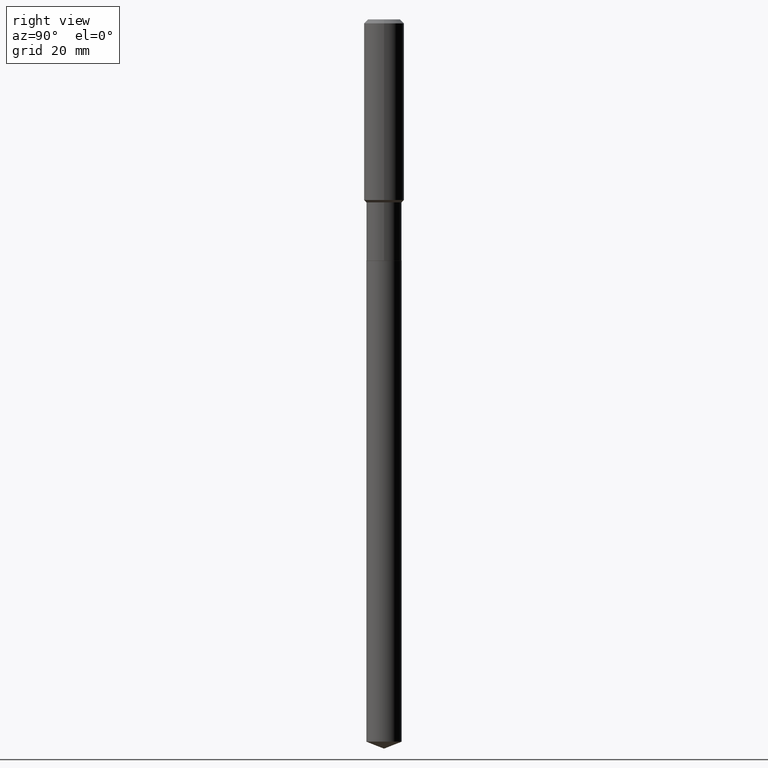
[diagram: clean part render]
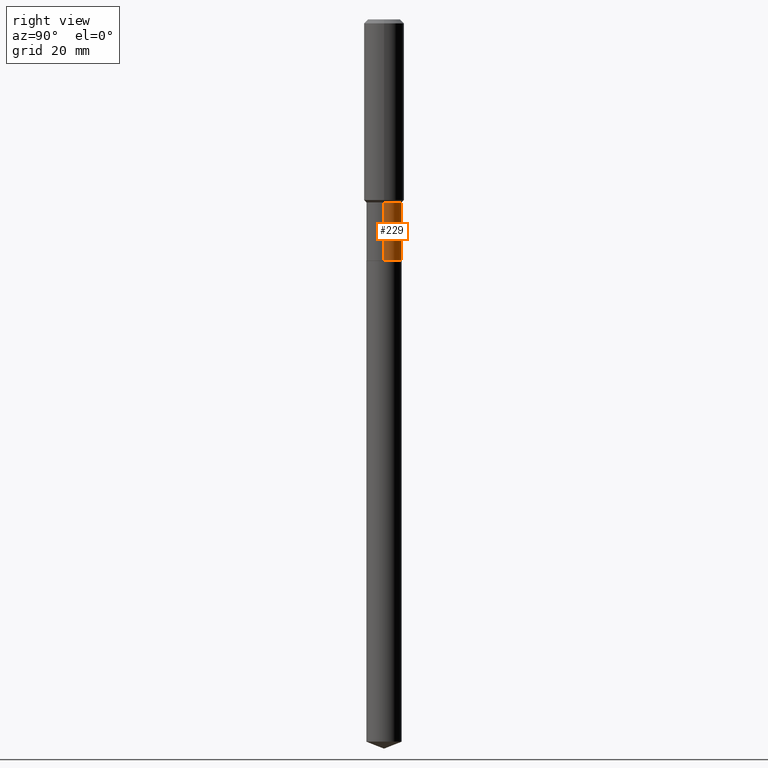
[diagram: same view with one face highlighted and labeled with its STEP entity id]
A machine part, right view. The second image highlights one B-rep face of the part: STEP entity #229.
In plain terms, the highlighted cylindrical surface (edge-blend (fillet) strip) has radius 4.4005 mm, axis along (-0, 0, 1).
Its self-contained STEP definition (entity closure, byte-faithful):
#3 = AXIS2_PLACEMENT_3D ( 'NONE', #109, #450, #481 ) ;
#25 = CARTESIAN_POINT ( 'NONE',  ( 0.000000000000000000, 0.000000000000000000, 0.000000000000000000 ) ) ;
#39 = AXIS2_PLACEMENT_3D ( 'NONE', #50, #91, #88 ) ;
#43 = CARTESIAN_POINT ( 'NONE',  ( 0.1732499999999999596, -1.209798283909145558E-15, 8.447976264066457276E-30 ) ) ;
#50 = CARTESIAN_POINT ( 'NONE',  ( 5.793804695613824490E-29, -8.272017587987179099E-15, -2.369199999999999751 ) ) ;
#55 = FACE_OUTER_BOUND ( 'NONE', #159, .T. ) ;
#56 = EDGE_CURVE ( 'NONE', #150, #457, #86, .T. ) ;
#60 = VECTOR ( 'NONE', #158, 39.37007874015748143 ) ;
#74 = CARTESIAN_POINT ( 'NONE',  ( 0.1732499999999999318, -7.487481731149119896E-15, -1.797999999999999821 ) ) ;
#86 = CIRCLE ( 'NONE', #39, 0.1732499999999999873 ) ;
#88 = DIRECTION ( 'NONE',  ( 1.000000000000000000, -6.982962677686265133E-15, 0.000000000000000000 ) ) ;
#91 = DIRECTION ( 'NONE',  ( -2.445468806185136597E-29, 3.491481338843145583E-15, 1.000000000000000000 ) ) ;
#101 = CARTESIAN_POINT ( 'NONE',  ( -0.1732499999999999873, -6.043835227909203138E-15, -2.369199999999999751 ) ) ;
#109 = CARTESIAN_POINT ( 'NONE',  ( 4.396952913520875005E-29, -6.277683447239975324E-15, -1.797999999999999821 ) ) ;
#115 = CARTESIAN_POINT ( 'NONE',  ( 0.1732499999999999873, -9.481815871896324459E-15, -2.369199999999999751 ) ) ;
#117 = AXIS2_PLACEMENT_3D ( 'NONE', #25, #245, #125 ) ;
#119 = LINE ( 'NONE', #213, #252 ) ;
#125 = DIRECTION ( 'NONE',  ( 1.000000000000000000, -6.982962677686267499E-15, 4.876176775795935793E-29 ) ) ;
#144 = CARTESIAN_POINT ( 'NONE',  ( -0.1732499999999999318, -6.043835227909203927E-15, -1.797999999999999821 ) ) ;
#150 = VERTEX_POINT ( 'NONE', #115 ) ;
#158 = DIRECTION ( 'NONE',  ( -2.445468806185136877E-29, 3.491481338843145188E-15, 1.000000000000000000 ) ) ;
#159 = EDGE_LOOP ( 'NONE', ( #226, #251, #240, #479 ) ) ;
#164 = EDGE_CURVE ( 'NONE', #150, #446, #195, .T. ) ;
#176 = EDGE_CURVE ( 'NONE', #457, #487, #119, .T. ) ;
#195 = LINE ( 'NONE', #43, #60 ) ;
#213 = CARTESIAN_POINT ( 'NONE',  ( -0.1732499999999999596, 1.231015289704373285E-15, -8.522055043866622021E-30 ) ) ;
#226 = ORIENTED_EDGE ( 'NONE', *, *, #56, .T. ) ;
#229 = ADVANCED_FACE ( 'NONE', ( #55 ), #363, .T. ) ;
#240 = ORIENTED_EDGE ( 'NONE', *, *, #394, .F. ) ;
#245 = DIRECTION ( 'NONE',  ( -2.445468806185136597E-29, 3.491481338843145583E-15, 1.000000000000000000 ) ) ;
#251 = ORIENTED_EDGE ( 'NONE', *, *, #176, .T. ) ;
#252 = VECTOR ( 'NONE', #403, 39.37007874015748143 ) ;
#317 = CIRCLE ( 'NONE', #3, 0.1732499999999999318 ) ;
#363 = CYLINDRICAL_SURFACE ( 'NONE', #117, 0.1732499999999999596 ) ;
#394 = EDGE_CURVE ( 'NONE', #446, #487, #317, .T. ) ;
#403 = DIRECTION ( 'NONE',  ( -2.445468806185136877E-29, 3.491481338843145188E-15, 1.000000000000000000 ) ) ;
#446 = VERTEX_POINT ( 'NONE', #74 ) ;
#450 = DIRECTION ( 'NONE',  ( -2.445468806185136597E-29, 3.491481338843145583E-15, 1.000000000000000000 ) ) ;
#457 = VERTEX_POINT ( 'NONE', #101 ) ;
#479 = ORIENTED_EDGE ( 'NONE', *, *, #164, .F. ) ;
#481 = DIRECTION ( 'NONE',  ( 1.000000000000000000, -6.982962677686267499E-15, 0.000000000000000000 ) ) ;
#487 = VERTEX_POINT ( 'NONE', #144 ) ;